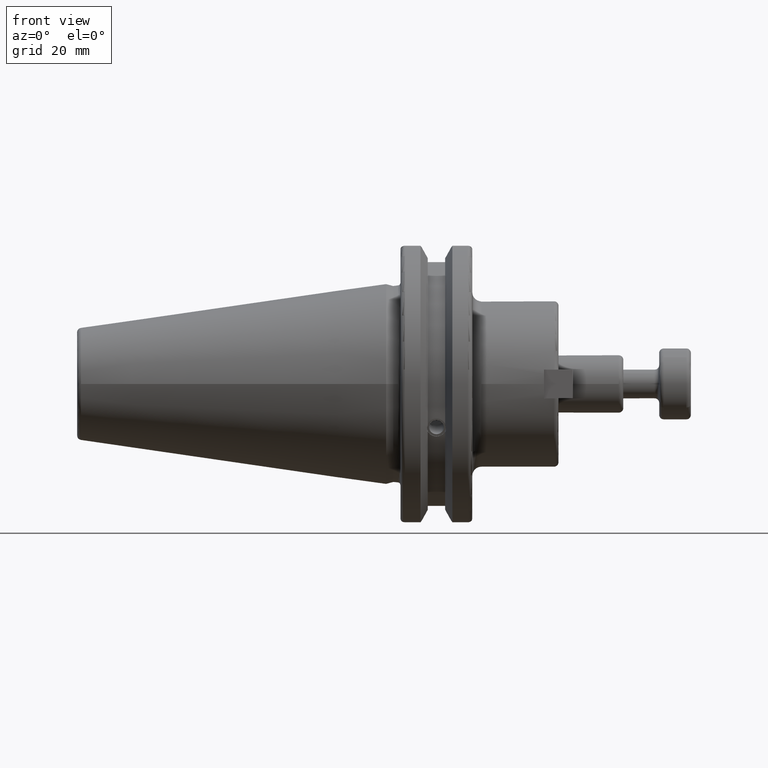
[diagram: clean part render]
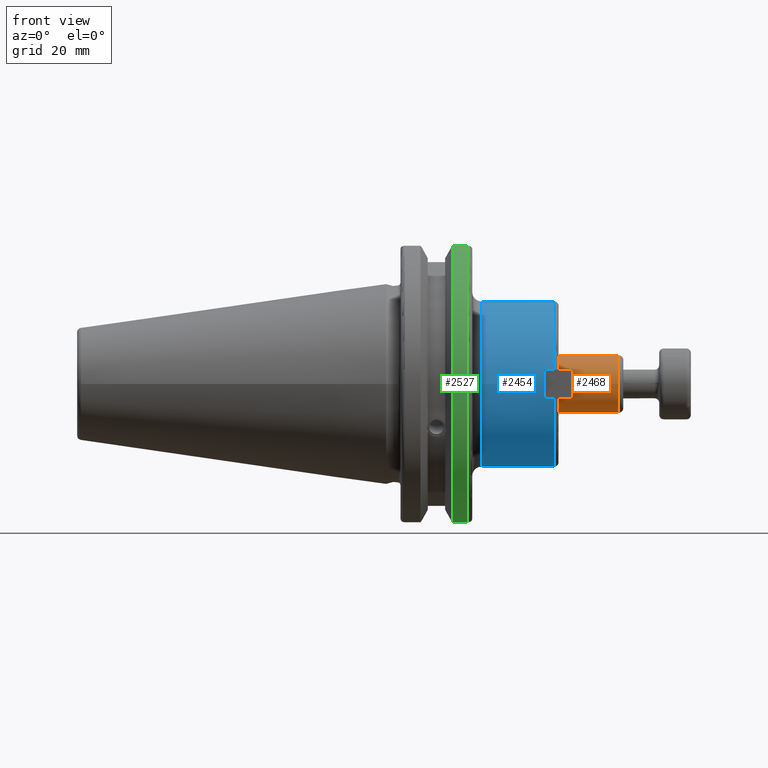
[diagram: same view with three faces highlighted in distinct colors, each labeled with its STEP entity id]
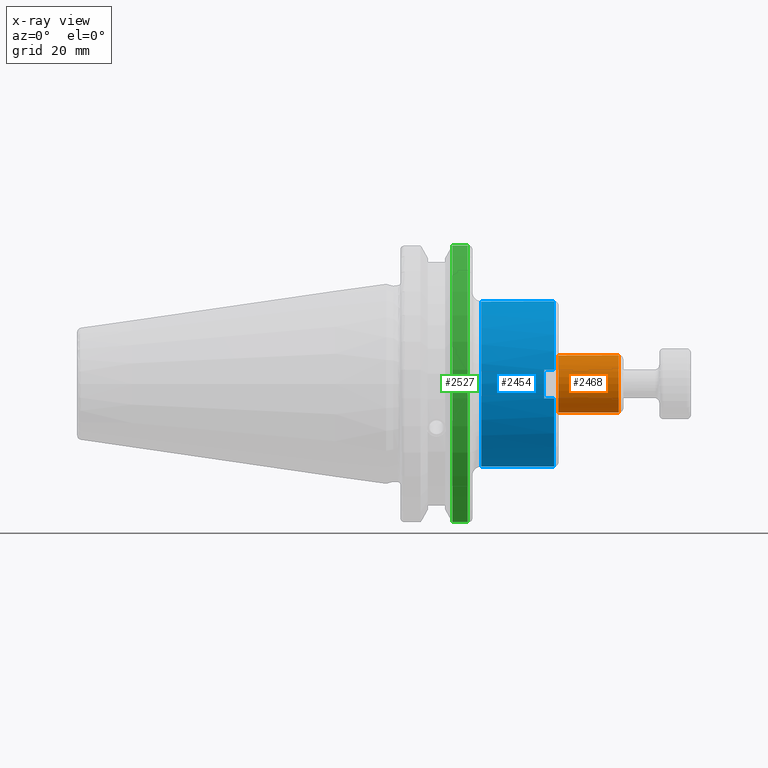
[diagram: x-ray of the same camera — body ghosted, the three highlighted faces saturated]
A machine part, front view with three faces highlighted in distinct colors.
The next image is the same camera in x-ray (body ghosted, the three faces saturated) — at least one of them is partly hidden behind the body in this view.
Their STEP definitions:

[orange] entity #2468 — the highlighted cylindrical surface (bore or boss wall) has radius 6.35 mm, axis along (1, 0, 0).
#116=CYLINDRICAL_SURFACE('',#2745,6.35);
#217=CIRCLE('',#2741,6.35);
#218=CIRCLE('',#2742,6.35);
#220=CIRCLE('',#2746,6.35);
#340=FACE_OUTER_BOUND('',#492,.T.);
#492=EDGE_LOOP('',(#1730,#1731,#1732,#1733,#1734));
#663=LINE('',#4004,#833);
#833=VECTOR('',#3123,6.35);
#1052=VERTEX_POINT('',#3994);
#1053=VERTEX_POINT('',#3996);
#1055=VERTEX_POINT('',#4003);
#1315=EDGE_CURVE('',#1052,#1053,#217,.T.);
#1316=EDGE_CURVE('',#1053,#1052,#218,.T.);
#1318=EDGE_CURVE('',#1053,#1055,#663,.T.);
#1319=EDGE_CURVE('',#1055,#1055,#220,.T.);
#1730=ORIENTED_EDGE('',*,*,#1316,.F.);
#1731=ORIENTED_EDGE('',*,*,#1318,.T.);
#1732=ORIENTED_EDGE('',*,*,#1319,.T.);
#1733=ORIENTED_EDGE('',*,*,#1318,.F.);
#1734=ORIENTED_EDGE('',*,*,#1315,.F.);
#2468=ADVANCED_FACE('',(#340),#116,.T.);
#2741=AXIS2_PLACEMENT_3D('',#3997,#3113,#3114);
#2742=AXIS2_PLACEMENT_3D('',#3998,#3115,#3116);
#2745=AXIS2_PLACEMENT_3D('',#4002,#3121,#3122);
#2746=AXIS2_PLACEMENT_3D('',#4005,#3124,#3125);
#3113=DIRECTION('center_axis',(1.,0.,0.));
#3114=DIRECTION('ref_axis',(0.,-1.,1.83697019872103E-16));
#3115=DIRECTION('center_axis',(1.,0.,0.));
#3116=DIRECTION('ref_axis',(0.,-1.,1.83697019872103E-16));
#3121=DIRECTION('center_axis',(1.,0.,0.));
#3122=DIRECTION('ref_axis',(0.,1.,0.));
#3123=DIRECTION('',(-1.,0.,0.));
#3124=DIRECTION('center_axis',(1.,0.,0.));
#3125=DIRECTION('ref_axis',(0.,0.,-1.));
#3994=CARTESIAN_POINT('',(51.4,-7.77650717458569E-16,6.35));
#3996=CARTESIAN_POINT('',(51.4,-6.35,-7.77650717458569E-16));
#3997=CARTESIAN_POINT('Origin',(51.4,0.,0.));
#3998=CARTESIAN_POINT('Origin',(51.4,0.,0.));
#4002=CARTESIAN_POINT('Origin',(45.25,0.,0.));
#4003=CARTESIAN_POINT('',(38.1,-6.35,-7.77650717458569E-16));
#4004=CARTESIAN_POINT('',(45.25,-6.35,-7.77650717458569E-16));
#4005=CARTESIAN_POINT('Origin',(38.1,0.,0.));

[blue] entity #2454 — the highlighted cylindrical surface (bore or boss wall) has radius 18.265 mm, axis along (1, 0, 0).
#111=CYLINDRICAL_SURFACE('',#2710,18.265);
#193=CIRCLE('',#2700,18.265);
#195=CIRCLE('',#2702,18.265);
#199=CIRCLE('',#2711,18.265);
#200=CIRCLE('',#2712,18.265);
#201=CIRCLE('',#2713,18.265);
#202=CIRCLE('',#2714,18.265);
#203=CIRCLE('',#2715,18.265);
#326=FACE_OUTER_BOUND('',#474,.T.);
#474=EDGE_LOOP('',(#1658,#1659,#1660,#1661,#1662,#1663,#1664,#1665,#1666,
#1667,#1668,#1669,#1670));
#642=LINE('',#3796,#812);
#647=LINE('',#3831,#817);
#649=LINE('',#3835,#819);
#650=LINE('',#3842,#820);
#651=LINE('',#3846,#821);
#812=VECTOR('',#3008,10.);
#817=VECTOR('',#3035,10.);
#819=VECTOR('',#3039,18.265);
#820=VECTOR('',#3046,10.);
#821=VECTOR('',#3049,10.);
#1014=VERTEX_POINT('',#3779);
#1017=VERTEX_POINT('',#3794);
#1018=VERTEX_POINT('',#3798);
#1020=VERTEX_POINT('',#3802);
#1025=VERTEX_POINT('',#3819);
#1027=VERTEX_POINT('',#3834);
#1028=VERTEX_POINT('',#3836);
#1029=VERTEX_POINT('',#3839);
#1030=VERTEX_POINT('',#3841);
#1031=VERTEX_POINT('',#3843);
#1032=VERTEX_POINT('',#3845);
#1263=EDGE_CURVE('',#1014,#1017,#642,.T.);
#1264=EDGE_CURVE('',#1017,#1018,#193,.T.);
#1267=EDGE_CURVE('',#1018,#1020,#195,.T.);
#1275=EDGE_CURVE('',#1020,#1025,#647,.T.);
#1277=EDGE_CURVE('',#1018,#1027,#649,.T.);
#1278=EDGE_CURVE('',#1028,#1027,#199,.T.);
#1279=EDGE_CURVE('',#1027,#1028,#200,.T.);
#1280=EDGE_CURVE('',#1029,#1025,#201,.T.);
#1281=EDGE_CURVE('',#1029,#1030,#650,.T.);
#1282=EDGE_CURVE('',#1030,#1031,#202,.T.);
#1283=EDGE_CURVE('',#1031,#1032,#651,.T.);
#1284=EDGE_CURVE('',#1014,#1032,#203,.T.);
#1658=ORIENTED_EDGE('',*,*,#1263,.T.);
#1659=ORIENTED_EDGE('',*,*,#1264,.T.);
#1660=ORIENTED_EDGE('',*,*,#1277,.T.);
#1661=ORIENTED_EDGE('',*,*,#1278,.F.);
#1662=ORIENTED_EDGE('',*,*,#1279,.F.);
#1663=ORIENTED_EDGE('',*,*,#1277,.F.);
#1664=ORIENTED_EDGE('',*,*,#1267,.T.);
#1665=ORIENTED_EDGE('',*,*,#1275,.T.);
#1666=ORIENTED_EDGE('',*,*,#1280,.F.);
#1667=ORIENTED_EDGE('',*,*,#1281,.T.);
#1668=ORIENTED_EDGE('',*,*,#1282,.T.);
#1669=ORIENTED_EDGE('',*,*,#1283,.T.);
#1670=ORIENTED_EDGE('',*,*,#1284,.F.);
#2454=ADVANCED_FACE('',(#326),#111,.T.);
#2700=AXIS2_PLACEMENT_3D('',#3799,#3011,#3012);
#2702=AXIS2_PLACEMENT_3D('',#3804,#3016,#3017);
#2710=AXIS2_PLACEMENT_3D('',#3833,#3037,#3038);
#2711=AXIS2_PLACEMENT_3D('',#3837,#3040,#3041);
#2712=AXIS2_PLACEMENT_3D('',#3838,#3042,#3043);
#2713=AXIS2_PLACEMENT_3D('',#3840,#3044,#3045);
#2714=AXIS2_PLACEMENT_3D('',#3844,#3047,#3048);
#2715=AXIS2_PLACEMENT_3D('',#3847,#3050,#3051);
#3008=DIRECTION('',(-1.,0.,0.));
#3011=DIRECTION('center_axis',(-1.,0.,0.));
#3012=DIRECTION('ref_axis',(0.,1.,0.));
#3016=DIRECTION('center_axis',(-1.,0.,0.));
#3017=DIRECTION('ref_axis',(0.,1.,0.));
#3035=DIRECTION('',(1.,0.,0.));
#3037=DIRECTION('center_axis',(1.,0.,0.));
#3038=DIRECTION('ref_axis',(0.,1.,0.));
#3039=DIRECTION('',(-1.,0.,0.));
#3040=DIRECTION('center_axis',(-1.,0.,0.));
#3041=DIRECTION('ref_axis',(0.,-1.,-1.22464679914735E-16));
#3042=DIRECTION('center_axis',(-1.,0.,0.));
#3043=DIRECTION('ref_axis',(0.,-1.,-1.22464679914735E-16));
#3044=DIRECTION('center_axis',(1.,0.,0.));
#3045=DIRECTION('ref_axis',(0.,-1.,1.83697019872103E-16));
#3046=DIRECTION('',(-1.,0.,0.));
#3047=DIRECTION('center_axis',(-1.,0.,0.));
#3048=DIRECTION('ref_axis',(0.,1.,0.));
#3049=DIRECTION('',(1.,0.,0.));
#3050=DIRECTION('center_axis',(1.,0.,0.));
#3051=DIRECTION('ref_axis',(0.,-1.,1.83697019872103E-16));
#3779=CARTESIAN_POINT('',(37.1,-17.9869285871713,-3.175));
#3794=CARTESIAN_POINT('',(34.9,-17.9869285871713,-3.175));
#3796=CARTESIAN_POINT('',(28.575,-17.9869285871713,-3.175));
#3798=CARTESIAN_POINT('',(34.9,-18.265,-2.23681737864264E-15));
#3799=CARTESIAN_POINT('Origin',(34.9,0.,0.));
#3802=CARTESIAN_POINT('',(34.9,-17.9869285871713,3.175));
#3804=CARTESIAN_POINT('Origin',(34.9,0.,0.));
#3819=CARTESIAN_POINT('',(37.1,-17.9869285871713,3.175));
#3831=CARTESIAN_POINT('',(28.575,-17.9869285871713,3.175));
#3833=CARTESIAN_POINT('Origin',(28.575,0.,0.));
#3834=CARTESIAN_POINT('',(21.05,-18.265,-2.23681737864264E-15));
#3835=CARTESIAN_POINT('',(28.575,-18.265,-2.23681737864264E-15));
#3836=CARTESIAN_POINT('',(21.05,-2.23681737864264E-15,-18.265));
#3837=CARTESIAN_POINT('Origin',(21.05,0.,0.));
#3838=CARTESIAN_POINT('Origin',(21.05,0.,0.));
#3839=CARTESIAN_POINT('',(37.1,17.9869285871713,3.175));
#3840=CARTESIAN_POINT('Origin',(37.1,0.,0.));
#3841=CARTESIAN_POINT('',(34.9,17.9869285871713,3.175));
#3842=CARTESIAN_POINT('',(28.575,17.9869285871713,3.175));
#3843=CARTESIAN_POINT('',(34.9,17.9869285871713,-3.175));
#3844=CARTESIAN_POINT('Origin',(34.9,0.,0.));
#3845=CARTESIAN_POINT('',(37.1,17.9869285871713,-3.175));
#3846=CARTESIAN_POINT('',(28.575,17.9869285871713,-3.175));
#3847=CARTESIAN_POINT('Origin',(37.1,0.,0.));

[green] entity #2527 — the highlighted cylindrical surface (partial cylindrical patch) has radius 31.75 mm, axis along (1, 0, 0).
#135=CYLINDRICAL_SURFACE('',#2870,31.75);
#232=CIRCLE('',#2782,31.75);
#258=CIRCLE('',#2842,31.75);
#399=FACE_OUTER_BOUND('',#562,.T.);
#562=EDGE_LOOP('',(#2075,#2076,#2077,#2078));
#743=LINE('',#4611,#913);
#744=LINE('',#4613,#914);
#913=VECTOR('',#3451,10.);
#914=VECTOR('',#3454,10.);
#1094=VERTEX_POINT('',#4163);
#1095=VERTEX_POINT('',#4167);
#1161=VERTEX_POINT('',#4456);
#1162=VERTEX_POINT('',#4465);
#1369=EDGE_CURVE('',#1095,#1094,#232,.T.);
#1461=EDGE_CURVE('',#1161,#1162,#258,.T.);
#1505=EDGE_CURVE('',#1162,#1094,#743,.T.);
#1506=EDGE_CURVE('',#1095,#1161,#744,.T.);
#2075=ORIENTED_EDGE('',*,*,#1461,.F.);
#2076=ORIENTED_EDGE('',*,*,#1506,.F.);
#2077=ORIENTED_EDGE('',*,*,#1369,.T.);
#2078=ORIENTED_EDGE('',*,*,#1505,.F.);
#2527=ADVANCED_FACE('',(#399),#135,.T.);
#2782=AXIS2_PLACEMENT_3D('',#4168,#3218,#3219);
#2842=AXIS2_PLACEMENT_3D('',#4466,#3375,#3376);
#2870=AXIS2_PLACEMENT_3D('',#4612,#3452,#3453);
#3218=DIRECTION('center_axis',(1.,0.,0.));
#3219=DIRECTION('ref_axis',(0.,0.,-1.));
#3375=DIRECTION('center_axis',(1.,0.,0.));
#3376=DIRECTION('ref_axis',(0.,-1.,1.60812264967664E-16));
#3451=DIRECTION('',(-1.,0.,0.));
#3452=DIRECTION('center_axis',(1.,0.,0.));
#3453=DIRECTION('ref_axis',(0.,-1.,1.22464679914735E-16));
#3454=DIRECTION('',(1.,0.,0.));
#4163=CARTESIAN_POINT('',(14.6602667690756,-8.67204822802686,-30.5427254764662));
#4167=CARTESIAN_POINT('',(14.6602667690756,-8.67204822802685,30.5427254764662));
#4168=CARTESIAN_POINT('Origin',(14.6602667690756,0.,0.));
#4456=CARTESIAN_POINT('',(18.05,-8.67204822802685,30.5427254764662));
#4465=CARTESIAN_POINT('',(18.05,-8.67204822802686,-30.5427254764662));
#4466=CARTESIAN_POINT('Origin',(18.05,0.,0.));
#4611=CARTESIAN_POINT('',(16.8551333845378,-8.67204822802686,-30.5427254764662));
#4612=CARTESIAN_POINT('Origin',(16.8551333845378,0.,0.));
#4613=CARTESIAN_POINT('',(16.8551333845378,-8.67204822802685,30.5427254764662));